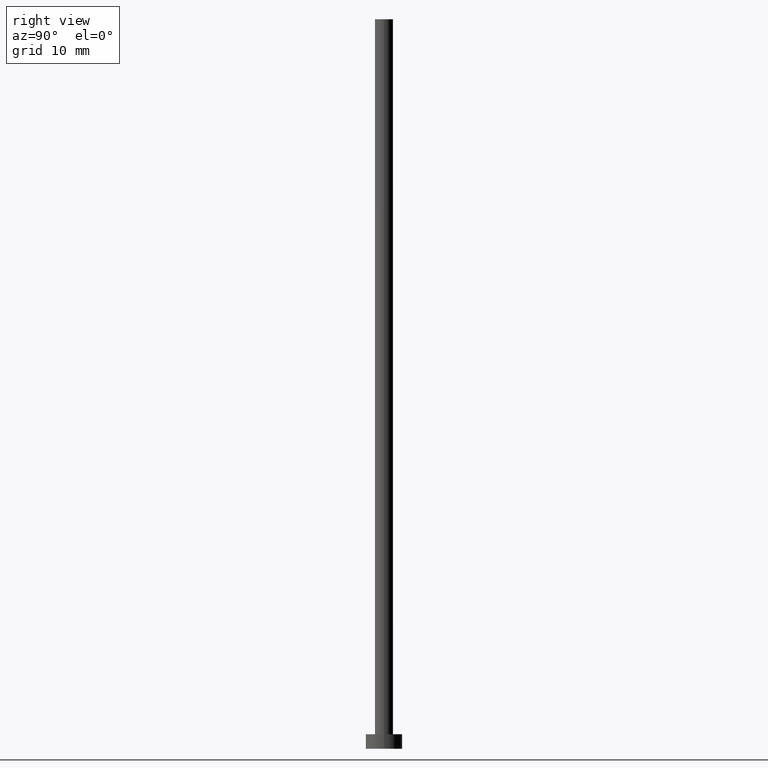
[diagram: clean part render]
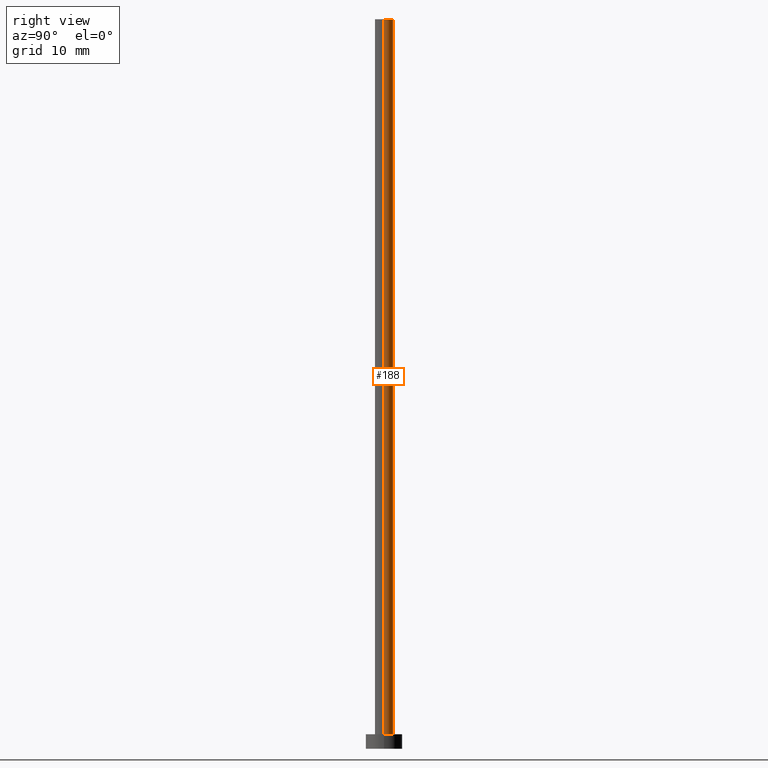
[diagram: same view with one face highlighted and labeled with its STEP entity id]
A machine part, right view. The second image highlights one B-rep face of the part: STEP entity #188.
In plain terms, the highlighted cylindrical surface (edge-blend (fillet) strip) has radius 1.25 mm, axis along (-0, -0, -1).
Its self-contained STEP definition (entity closure, byte-faithful):
#1 = DIRECTION ( 'NONE',  ( 0.000000000000000000, 0.000000000000000000, 1.000000000000000000 ) ) ;
#5 = CARTESIAN_POINT ( 'NONE',  ( 0.000000000000000000, 0.000000000000000000, 100.0000000000000000 ) ) ;
#12 = AXIS2_PLACEMENT_3D ( 'NONE', #173, #1, #153 ) ;
#26 = LINE ( 'NONE', #136, #86 ) ;
#29 = CIRCLE ( 'NONE', #12, 1.250000000000000000 ) ;
#31 = DIRECTION ( 'NONE',  ( -1.000000000000000000, 0.000000000000000000, 0.000000000000000000 ) ) ;
#32 = LINE ( 'NONE', #103, #158 ) ;
#42 = CARTESIAN_POINT ( 'NONE',  ( -1.250000000000000000, 0.000000000000000000, 100.0000000000000000 ) ) ;
#45 = CYLINDRICAL_SURFACE ( 'NONE', #117, 1.250000000000000000 ) ;
#48 = CARTESIAN_POINT ( 'NONE',  ( 0.000000000000000000, 0.000000000000000000, 100.0000000000000000 ) ) ;
#56 = EDGE_CURVE ( 'NONE', #87, #109, #57, .T. ) ;
#57 = CIRCLE ( 'NONE', #201, 1.250000000000000000 ) ;
#62 = DIRECTION ( 'NONE',  ( 0.000000000000000000, 0.000000000000000000, 1.000000000000000000 ) ) ;
#69 = EDGE_CURVE ( 'NONE', #87, #169, #26, .T. ) ;
#73 = ORIENTED_EDGE ( 'NONE', *, *, #56, .F. ) ;
#86 = VECTOR ( 'NONE', #172, 1000.000000000000000 ) ;
#87 = VERTEX_POINT ( 'NONE', #178 ) ;
#100 = CARTESIAN_POINT ( 'NONE',  ( -1.250000000000000000, 0.000000000000000000, 2.000000000000000000 ) ) ;
#103 = CARTESIAN_POINT ( 'NONE',  ( -1.250000000000000000, 0.000000000000000000, 100.0000000000000000 ) ) ;
#109 = VERTEX_POINT ( 'NONE', #42 ) ;
#117 = AXIS2_PLACEMENT_3D ( 'NONE', #48, #121, #31 ) ;
#118 = EDGE_LOOP ( 'NONE', ( #73, #195, #223, #119 ) ) ;
#119 = ORIENTED_EDGE ( 'NONE', *, *, #196, .F. ) ;
#120 = DIRECTION ( 'NONE',  ( -0.000000000000000000, -0.000000000000000000, -1.000000000000000000 ) ) ;
#121 = DIRECTION ( 'NONE',  ( -0.000000000000000000, -0.000000000000000000, -1.000000000000000000 ) ) ;
#131 = EDGE_CURVE ( 'NONE', #169, #203, #29, .T. ) ;
#135 = DIRECTION ( 'NONE',  ( 1.000000000000000000, 0.000000000000000000, 0.000000000000000000 ) ) ;
#136 = CARTESIAN_POINT ( 'NONE',  ( 1.250000000000000000, 1.530808498934191571E-16, 100.0000000000000000 ) ) ;
#139 = CARTESIAN_POINT ( 'NONE',  ( 1.250000000000000000, 1.530808498934191571E-16, 2.000000000000000000 ) ) ;
#153 = DIRECTION ( 'NONE',  ( 1.000000000000000000, 0.000000000000000000, 0.000000000000000000 ) ) ;
#158 = VECTOR ( 'NONE', #120, 1000.000000000000000 ) ;
#169 = VERTEX_POINT ( 'NONE', #139 ) ;
#172 = DIRECTION ( 'NONE',  ( -0.000000000000000000, -0.000000000000000000, -1.000000000000000000 ) ) ;
#173 = CARTESIAN_POINT ( 'NONE',  ( 0.000000000000000000, 0.000000000000000000, 2.000000000000000000 ) ) ;
#178 = CARTESIAN_POINT ( 'NONE',  ( 1.250000000000000000, 1.530808498934191571E-16, 100.0000000000000000 ) ) ;
#188 = ADVANCED_FACE ( 'NONE', ( #245 ), #45, .T. ) ;
#195 = ORIENTED_EDGE ( 'NONE', *, *, #69, .T. ) ;
#196 = EDGE_CURVE ( 'NONE', #109, #203, #32, .T. ) ;
#201 = AXIS2_PLACEMENT_3D ( 'NONE', #5, #62, #135 ) ;
#203 = VERTEX_POINT ( 'NONE', #100 ) ;
#223 = ORIENTED_EDGE ( 'NONE', *, *, #131, .T. ) ;
#245 = FACE_OUTER_BOUND ( 'NONE', #118, .T. ) ;